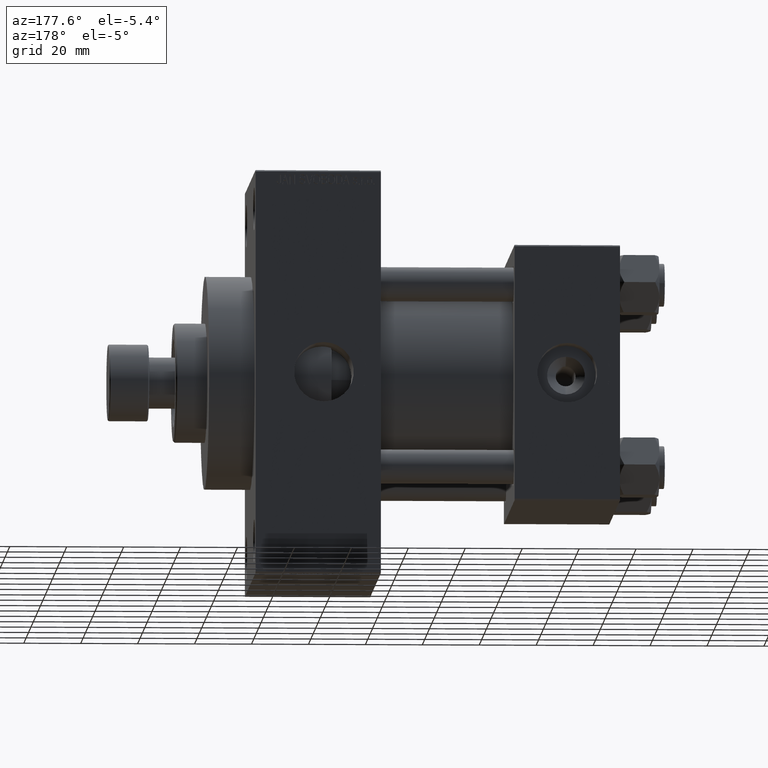
[diagram: clean part render]
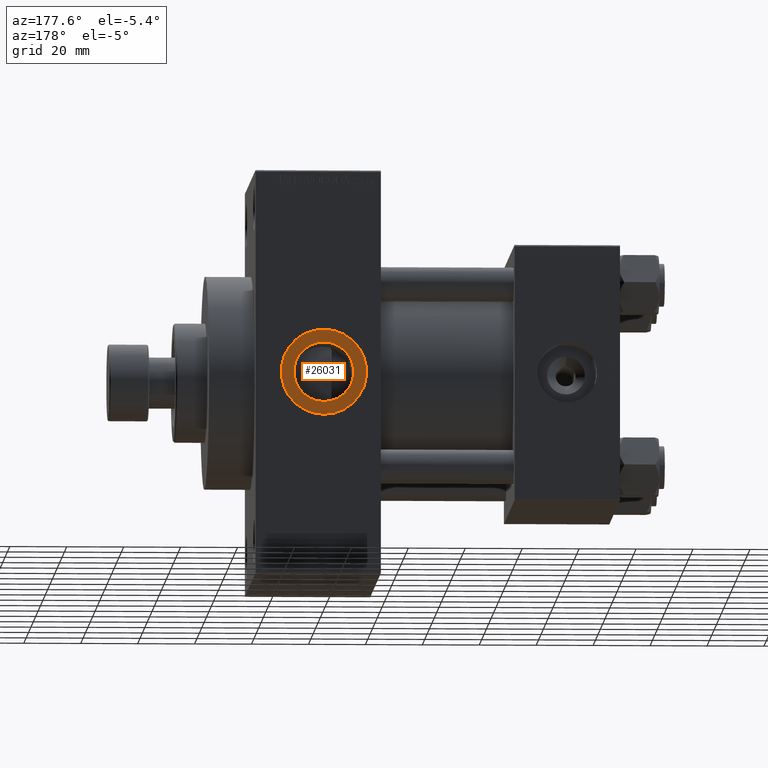
[diagram: same view with one face highlighted and labeled with its STEP entity id]
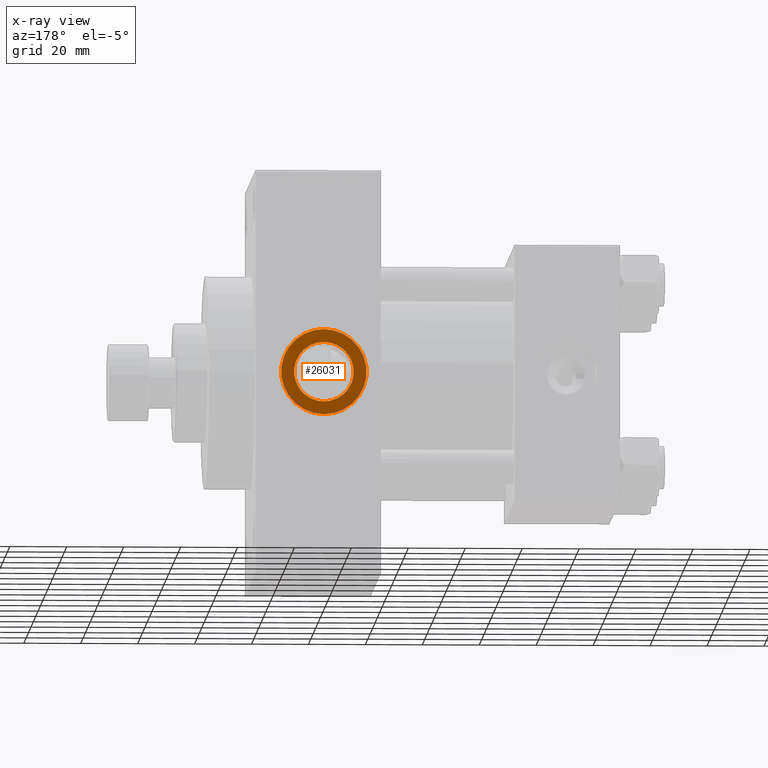
[diagram: x-ray of the same camera — body ghosted, the highlighted face saturated]
A machine part, auxiliary view. The second image highlights one B-rep face of the part: STEP entity #26031.
The next image is the same camera in x-ray: the body ghosted, the highlighted face saturated — about 0% of this face is hidden behind the body in this view.
In plain terms, the highlighted planar face has unit normal (0, 1, 0).
Its self-contained STEP definition (entity closure, byte-faithful):
#611 = CARTESIAN_POINT ( 'NONE',  ( 104.0000000000000000, 44.80000000000001847, 10.47999999999999865 ) ) ;
#992 = DIRECTION ( 'NONE',  ( 0.000000000000000000, 1.000000000000000000, 0.000000000000000000 ) ) ;
#1159 = DIRECTION ( 'NONE',  ( 0.000000000000000000, -0.000000000000000000, 1.000000000000000000 ) ) ;
#1460 = CIRCLE ( 'NONE', #8424, 10.48000000000000043 ) ;
#2593 = CARTESIAN_POINT ( 'NONE',  ( 104.0000000000000000, 44.80000000000001137, -15.00000000000000178 ) ) ;
#3802 = EDGE_CURVE ( 'NONE', #16749, #8607, #23656, .T. ) ;
#4783 = FACE_BOUND ( 'NONE', #38950, .T. ) ;
#5157 = CARTESIAN_POINT ( 'NONE',  ( 104.0000000000000000, 44.80000000000001847, -10.48000000000000220 ) ) ;
#6289 = DIRECTION ( 'NONE',  ( 0.000000000000000000, 1.000000000000000000, 0.000000000000000000 ) ) ;
#6876 = ORIENTED_EDGE ( 'NONE', *, *, #7873, .F. ) ;
#7873 = EDGE_CURVE ( 'NONE', #15075, #40517, #1460, .T. ) ;
#8424 = AXIS2_PLACEMENT_3D ( 'NONE', #18378, #18614, #14761 ) ;
#8607 = VERTEX_POINT ( 'NONE', #21779 ) ;
#11846 = CARTESIAN_POINT ( 'NONE',  ( 104.0000000000000000, 44.80000000000001137, -2.198945251238207943E-15 ) ) ;
#14761 = DIRECTION ( 'NONE',  ( 0.000000000000000000, 0.000000000000000000, 1.000000000000000000 ) ) ;
#15075 = VERTEX_POINT ( 'NONE', #611 ) ;
#15123 = DIRECTION ( 'NONE',  ( 0.000000000000000000, 1.000000000000000000, 0.000000000000000000 ) ) ;
#15587 = AXIS2_PLACEMENT_3D ( 'NONE', #11846, #20503, #16893 ) ;
#15689 = DIRECTION ( 'NONE',  ( 0.000000000000000000, 0.000000000000000000, 1.000000000000000000 ) ) ;
#16749 = VERTEX_POINT ( 'NONE', #2593 ) ;
#16893 = DIRECTION ( 'NONE',  ( 0.000000000000000000, 0.000000000000000000, 1.000000000000000000 ) ) ;
#18378 = CARTESIAN_POINT ( 'NONE',  ( 104.0000000000000000, 44.80000000000001847, -2.198945251238207943E-15 ) ) ;
#18614 = DIRECTION ( 'NONE',  ( 0.000000000000000000, 1.000000000000000000, 0.000000000000000000 ) ) ;
#18748 = PLANE ( 'NONE',  #22402 ) ;
#19081 = EDGE_CURVE ( 'NONE', #8607, #16749, #20198, .T. ) ;
#20198 = CIRCLE ( 'NONE', #15587, 15.00000000000000000 ) ;
#20503 = DIRECTION ( 'NONE',  ( 0.000000000000000000, 1.000000000000000000, 0.000000000000000000 ) ) ;
#20950 = ORIENTED_EDGE ( 'NONE', *, *, #19081, .T. ) ;
#21779 = CARTESIAN_POINT ( 'NONE',  ( 104.0000000000000000, 44.80000000000001137, 14.99999999999999822 ) ) ;
#22402 = AXIS2_PLACEMENT_3D ( 'NONE', #44557, #15123, #1159 ) ;
#23656 = CIRCLE ( 'NONE', #38289, 15.00000000000000000 ) ;
#26031 = ADVANCED_FACE ( 'NONE', ( #4783, #45043 ), #18748, .T. ) ;
#28454 = CARTESIAN_POINT ( 'NONE',  ( 104.0000000000000000, 44.80000000000001847, -2.198945251238207943E-15 ) ) ;
#32002 = EDGE_CURVE ( 'NONE', #40517, #15075, #43396, .T. ) ;
#34006 = CARTESIAN_POINT ( 'NONE',  ( 104.0000000000000000, 44.80000000000001137, -2.198945251238207943E-15 ) ) ;
#34925 = AXIS2_PLACEMENT_3D ( 'NONE', #28454, #6289, #35685 ) ;
#35685 = DIRECTION ( 'NONE',  ( 0.000000000000000000, 0.000000000000000000, 1.000000000000000000 ) ) ;
#37727 = EDGE_LOOP ( 'NONE', ( #20950, #46875 ) ) ;
#38289 = AXIS2_PLACEMENT_3D ( 'NONE', #34006, #992, #15689 ) ;
#38950 = EDGE_LOOP ( 'NONE', ( #6876, #41076 ) ) ;
#40517 = VERTEX_POINT ( 'NONE', #5157 ) ;
#41076 = ORIENTED_EDGE ( 'NONE', *, *, #32002, .F. ) ;
#43396 = CIRCLE ( 'NONE', #34925, 10.48000000000000043 ) ;
#44557 = CARTESIAN_POINT ( 'NONE',  ( 104.0000000000000000, 44.80000000000001137, -2.198945251238207943E-15 ) ) ;
#45043 = FACE_OUTER_BOUND ( 'NONE', #37727, .T. ) ;
#46875 = ORIENTED_EDGE ( 'NONE', *, *, #3802, .T. ) ;